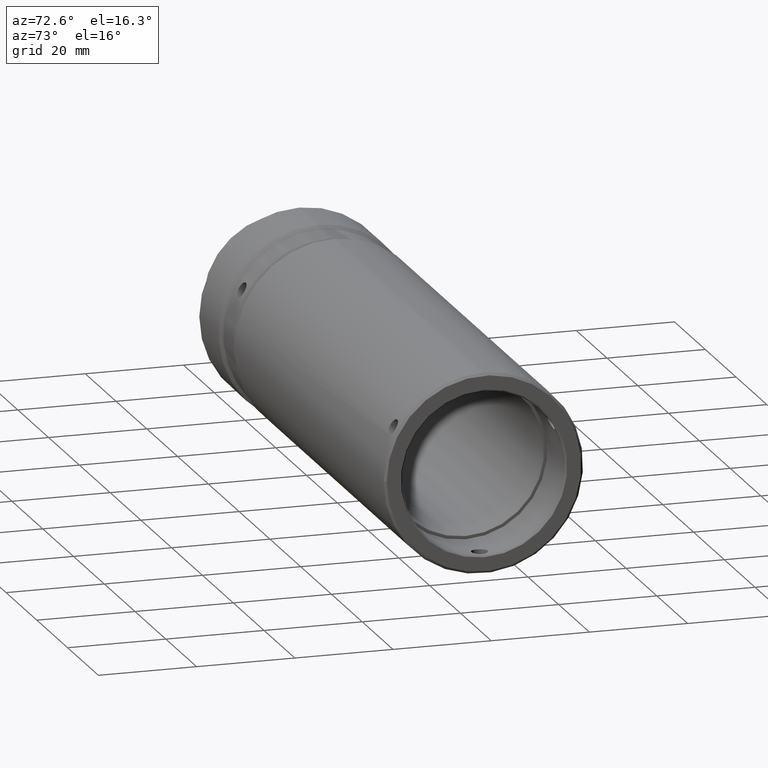
[diagram: clean part render]
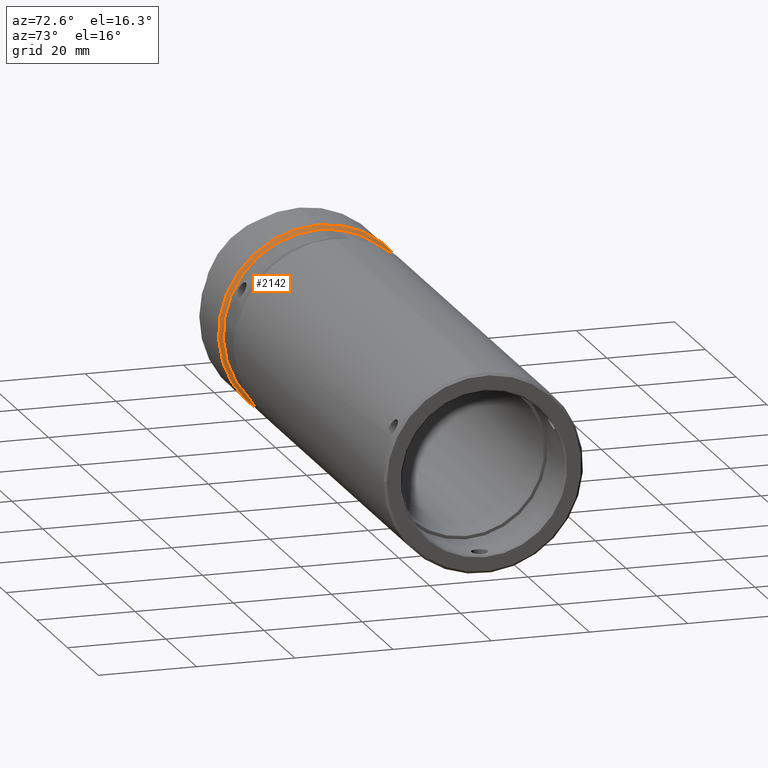
[diagram: same view with one face highlighted and labeled with its STEP entity id]
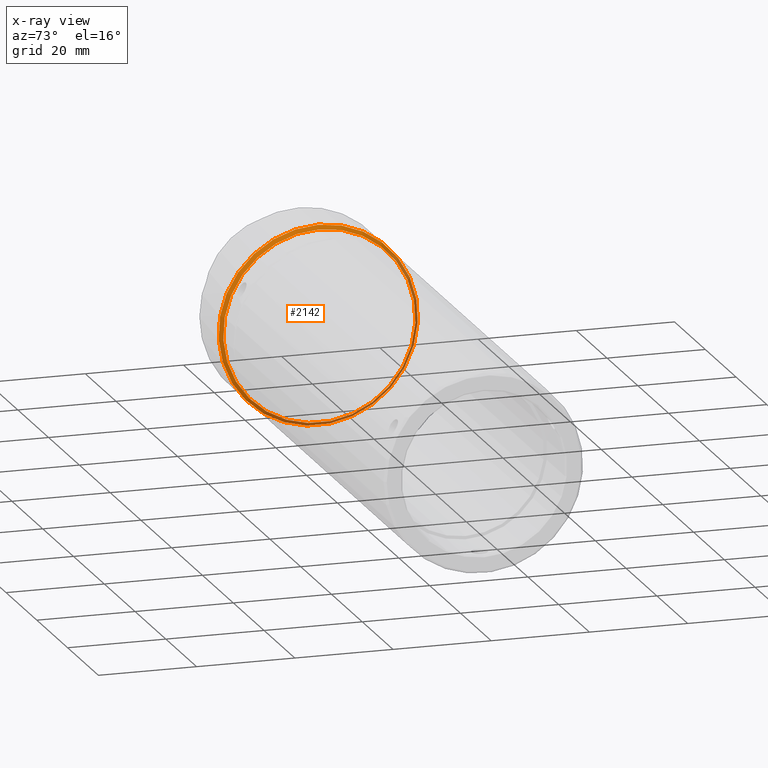
[diagram: x-ray of the same camera — body ghosted, the highlighted face saturated]
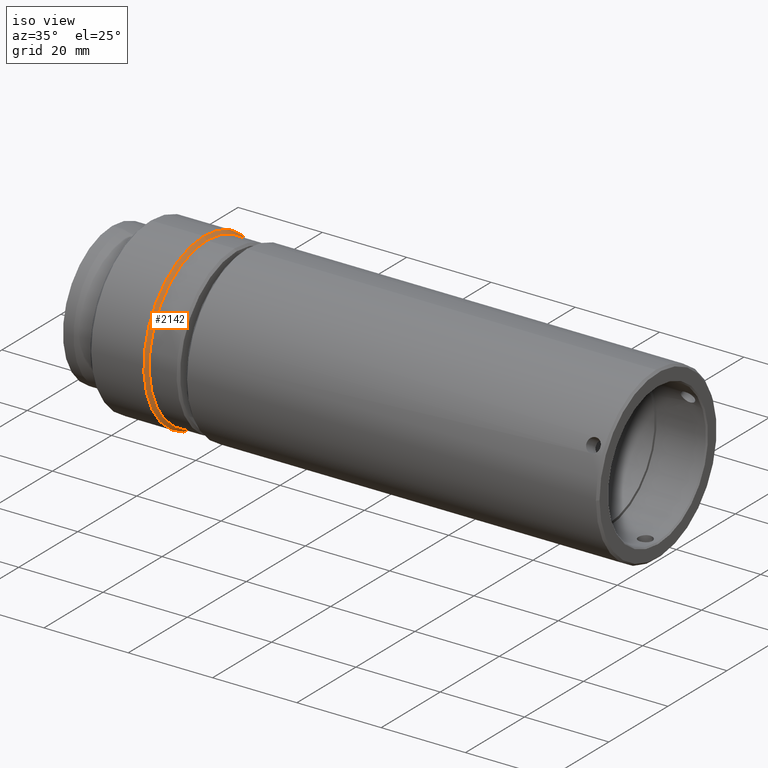
[diagram: same view with one face highlighted and labeled with its STEP entity id]
A machine part, auxiliary view. The second image highlights one B-rep face of the part: STEP entity #2142.
The next image is the same camera in x-ray: the body ghosted, the highlighted face saturated — about 34% of this face is hidden behind the body in this view.
A second angle (iso view) of the same face is appended — the face is thin or edge-on in the first view.
In plain terms, the highlighted conical surface has half-angle 45 deg.
Its self-contained STEP definition (entity closure, byte-faithful):
#55 = DIRECTION ( 'NONE',  ( -1.000000000000000000, 0.000000000000000000, 0.000000000000000000 ) ) ;
#218 = EDGE_LOOP ( 'NONE', ( #2069 ) ) ;
#250 = VERTEX_POINT ( 'NONE', #935 ) ;
#295 = DIRECTION ( 'NONE',  ( 0.000000000000000000, 0.000000000000000000, 1.000000000000000000 ) ) ;
#355 = EDGE_CURVE ( 'NONE', #2140, #2140, #1269, .T. ) ;
#536 = EDGE_LOOP ( 'NONE', ( #1067 ) ) ;
#571 = EDGE_CURVE ( 'NONE', #250, #250, #873, .T. ) ;
#873 = CIRCLE ( 'NONE', #2146, 20.30000000000001137 ) ;
#935 = CARTESIAN_POINT ( 'NONE',  ( 14.68949542268089381, 50.30531704458957165, 127.2958967609388878 ) ) ;
#1067 = ORIENTED_EDGE ( 'NONE', *, *, #571, .F. ) ;
#1110 = DIRECTION ( 'NONE',  ( 0.000000000000000000, 0.000000000000000000, 1.000000000000000000 ) ) ;
#1267 = CARTESIAN_POINT ( 'NONE',  ( 15.41949542268091200, 50.30531704458957165, 126.5658967609388839 ) ) ;
#1269 = CIRCLE ( 'NONE', #1784, 19.57000000000000384 ) ;
#1381 = DIRECTION ( 'NONE',  ( -1.000000000000000000, 0.000000000000000000, 0.000000000000000000 ) ) ;
#1448 = FACE_BOUND ( 'NONE', #218, .T. ) ;
#1524 = DIRECTION ( 'NONE',  ( 8.864197628905502268E-17, 0.000000000000000000, 1.000000000000000000 ) ) ;
#1611 = FACE_OUTER_BOUND ( 'NONE', #536, .T. ) ;
#1720 = CARTESIAN_POINT ( 'NONE',  ( 15.41949542268091022, 50.30531704458957165, 106.9958967609388765 ) ) ;
#1784 = AXIS2_PLACEMENT_3D ( 'NONE', #1720, #1381, #1524 ) ;
#1820 = DIRECTION ( 'NONE',  ( -1.000000000000000000, -0.000000000000000000, -0.000000000000000000 ) ) ;
#1855 = CARTESIAN_POINT ( 'NONE',  ( 14.68949542268089381, 50.30531704458957165, 106.9958967609388765 ) ) ;
#1992 = CARTESIAN_POINT ( 'NONE',  ( 14.68949542268089736, 50.30531704458957165, 106.9958967609388765 ) ) ;
#2069 = ORIENTED_EDGE ( 'NONE', *, *, #355, .T. ) ;
#2137 = AXIS2_PLACEMENT_3D ( 'NONE', #1992, #55, #1110 ) ;
#2140 = VERTEX_POINT ( 'NONE', #1267 ) ;
#2142 = ADVANCED_FACE ( 'NONE', ( #1611, #1448 ), #2245, .T. ) ;
#2146 = AXIS2_PLACEMENT_3D ( 'NONE', #1855, #1820, #295 ) ;
#2245 = CONICAL_SURFACE ( 'NONE', #2137, 20.30000000000001137, 0.7853981633974447263 ) ;